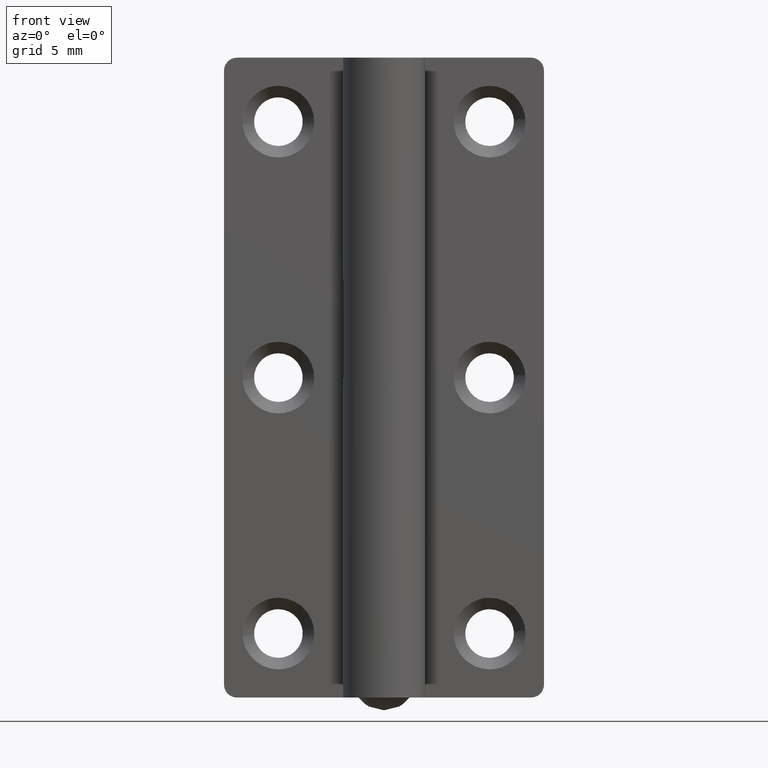
[diagram: clean part render]
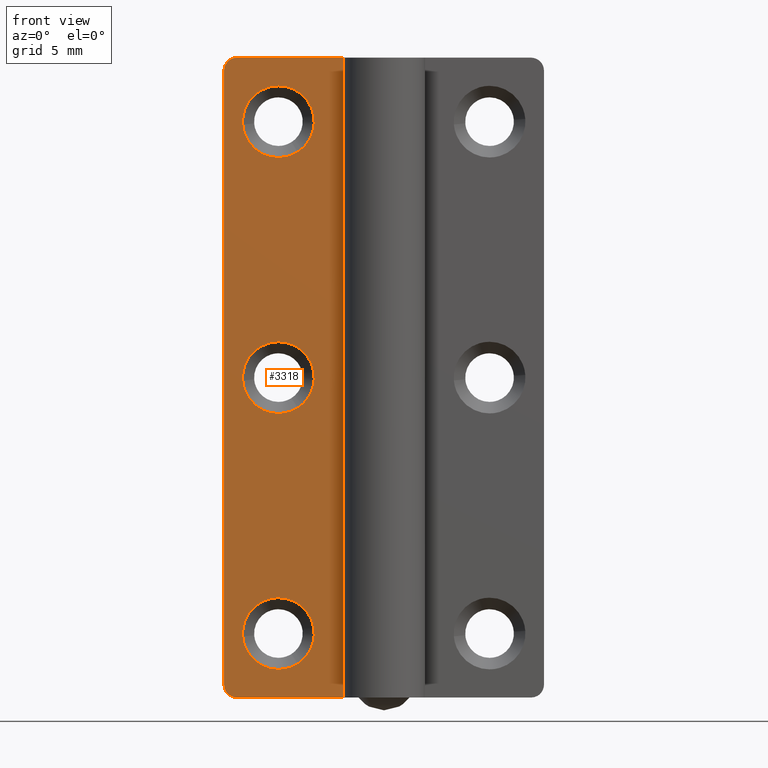
[diagram: same view with one face highlighted and labeled with its STEP entity id]
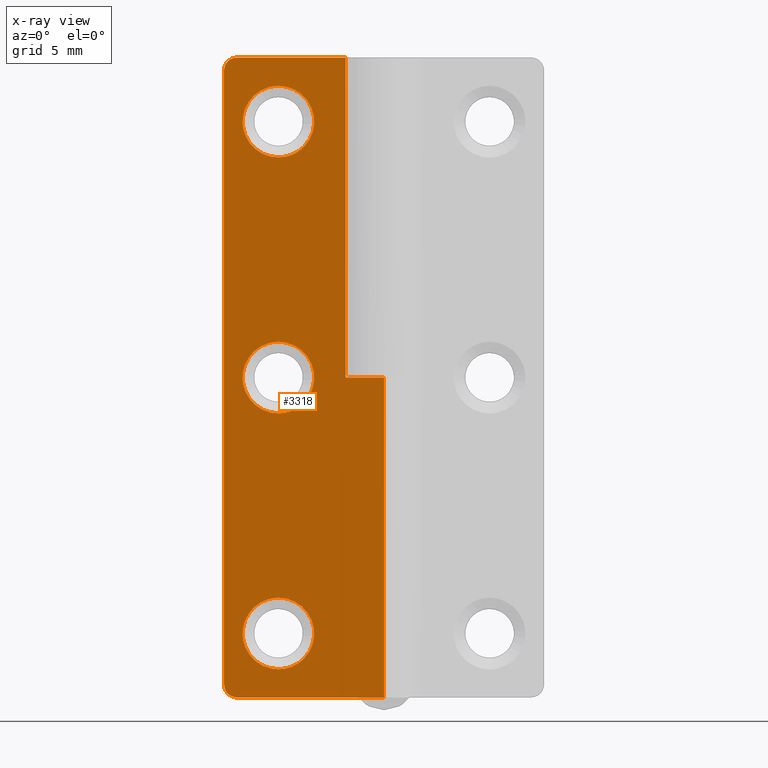
[diagram: x-ray of the same camera — body ghosted, the highlighted face saturated]
A machine part, front view. The second image highlights one B-rep face of the part: STEP entity #3318.
The next image is the same camera in x-ray: the body ghosted, the highlighted face saturated — about 0% of this face is hidden behind the body in this view.
In plain terms, the highlighted face is a freeform B-spline surface patch.
Its self-contained STEP definition (entity closure, byte-faithful):
#1903=CARTESIAN_POINT('',(-6.744017771877992,1.999999999996396,42.639487853164482));
#1904=VERTEX_POINT('',#1903);
#1910=CARTESIAN_POINT('',(-8.250000000000000,2.0,47.800000011920929));
#1911=VERTEX_POINT('',#1910);
#1912=CARTESIAN_POINT('',(-8.250000000000000,2.0,47.800000011920929));
#1913=CARTESIAN_POINT('',(-5.449999988079070,2.000000000000000,47.800000011920929));
#1914=CARTESIAN_POINT('',(-5.449999988079070,2.0,45.0));
#1915=CARTESIAN_POINT('',(-5.449999988079069,2.000000000000000,43.465057756714870));
#1916=CARTESIAN_POINT('',(-6.744017771877993,1.999999999996397,42.639487853164475));
#1924=(BOUNDED_CURVE()B_SPLINE_CURVE(2,(#1912,#1913,#1914,#1915,#1916),.UNSPECIFIED.,.F.,.U.)B_SPLINE_CURVE_WITH_KNOTS((3,2,3),(0.0,0.250000000000000,0.407950112619935),.UNSPECIFIED.)CURVE()GEOMETRIC_REPRESENTATION_ITEM()RATIONAL_B_SPLINE_CURVE((1.0,0.707106781186548,1.0,0.814949932411200,0.863729296950220))REPRESENTATION_ITEM(''));
#1925=EDGE_CURVE('',#1911,#1904,#1924,.T.);
#1927=CARTESIAN_POINT('',(-11.041368546347060,1.999999999974802,44.780314530834097));
#1928=VERTEX_POINT('',#1927);
#1929=CARTESIAN_POINT('',(-11.041368546347059,1.999999999974803,44.780314530834112));
#1930=CARTESIAN_POINT('',(-11.050000011920931,2.0,44.889987699718631));
#1931=CARTESIAN_POINT('',(-11.050000011920931,2.0,45.0));
#1932=CARTESIAN_POINT('',(-11.050000011920931,2.000000000000000,47.800000011920929));
#1933=CARTESIAN_POINT('',(-8.250000000000000,2.0,47.800000011920929));
#1941=(BOUNDED_CURVE()B_SPLINE_CURVE(2,(#1929,#1930,#1931,#1932,#1933),.UNSPECIFIED.,.F.,.U.)B_SPLINE_CURVE_WITH_KNOTS((3,2,3),(0.736331300609352,0.750000000000000,1.0),.UNSPECIFIED.)CURVE()GEOMETRIC_REPRESENTATION_ITEM()RATIONAL_B_SPLINE_CURVE((0.969723356122950,0.983986122553918,1.0,0.707106781186548,1.0))REPRESENTATION_ITEM(''));
#1942=EDGE_CURVE('',#1928,#1911,#1941,.T.);
#2046=CARTESIAN_POINT('',(-8.250000000000000,2.0,42.199999988079057));
#2047=VERTEX_POINT('',#2046);
#2048=CARTESIAN_POINT('',(-8.250000000000000,2.0,42.199999988079057));
#2049=CARTESIAN_POINT('',(-10.838293387307939,2.000000000000000,42.199999988079071));
#2050=CARTESIAN_POINT('',(-11.041368546347060,1.999999999974803,44.780314530834112));
#2058=(BOUNDED_CURVE()B_SPLINE_CURVE(2,(#2048,#2049,#2050),.UNSPECIFIED.,.F.,.U.)B_SPLINE_CURVE_WITH_KNOTS((3,3),(0.500000000000000,0.736331300609351),.UNSPECIFIED.)CURVE()GEOMETRIC_REPRESENTATION_ITEM()RATIONAL_B_SPLINE_CURVE((1.0,0.723120658632630,0.969723356122949))REPRESENTATION_ITEM(''));
#2059=EDGE_CURVE('',#2047,#1928,#2058,.T.);
#2061=CARTESIAN_POINT('',(-6.744017771877993,1.999999999996397,42.639487853164475));
#2062=CARTESIAN_POINT('',(-7.432881441383225,2.0,42.199999988079071));
#2063=CARTESIAN_POINT('',(-8.250000000000000,2.0,42.199999988079057));
#2071=(BOUNDED_CURVE()B_SPLINE_CURVE(2,(#2061,#2062,#2063),.UNSPECIFIED.,.F.,.U.)B_SPLINE_CURVE_WITH_KNOTS((3,3),(0.407950112619935,0.500000000000000),.UNSPECIFIED.)CURVE()GEOMETRIC_REPRESENTATION_ITEM()RATIONAL_B_SPLINE_CURVE((0.863729296950220,0.892156848775348,1.0))REPRESENTATION_ITEM(''));
#2072=EDGE_CURVE('',#1904,#2047,#2071,.T.);
#2247=CARTESIAN_POINT('',(-6.744017771877990,1.999999999996395,22.639487853164479));
#2248=VERTEX_POINT('',#2247);
#2254=CARTESIAN_POINT('',(-8.250000000000000,2.0,27.800000011920929));
#2255=VERTEX_POINT('',#2254);
#2256=CARTESIAN_POINT('',(-8.250000000000000,2.0,27.800000011920929));
#2257=CARTESIAN_POINT('',(-5.449999988079070,2.000000000000000,27.800000011920940));
#2258=CARTESIAN_POINT('',(-5.449999988079070,2.0,25.0));
#2259=CARTESIAN_POINT('',(-5.449999988079069,2.000000000000000,23.465057756714874));
#2260=CARTESIAN_POINT('',(-6.744017771877990,1.999999999996395,22.639487853164482));
#2268=(BOUNDED_CURVE()B_SPLINE_CURVE(2,(#2256,#2257,#2258,#2259,#2260),.UNSPECIFIED.,.F.,.U.)B_SPLINE_CURVE_WITH_KNOTS((3,2,3),(0.0,0.250000000000000,0.407950112619935),.UNSPECIFIED.)CURVE()GEOMETRIC_REPRESENTATION_ITEM()RATIONAL_B_SPLINE_CURVE((1.0,0.707106781186548,1.0,0.814949932411200,0.863729296950220))REPRESENTATION_ITEM(''));
#2269=EDGE_CURVE('',#2255,#2248,#2268,.T.);
#2271=CARTESIAN_POINT('',(-11.041368546347060,1.999999999974802,24.780314530834119));
#2272=VERTEX_POINT('',#2271);
#2273=CARTESIAN_POINT('',(-11.041368546347053,1.999999999974802,24.780314530834122));
#2274=CARTESIAN_POINT('',(-11.050000011920927,2.000000000000000,24.889987699718635));
#2275=CARTESIAN_POINT('',(-11.050000011920931,2.0,25.0));
#2276=CARTESIAN_POINT('',(-11.050000011920931,2.000000000000000,27.800000011920940));
#2277=CARTESIAN_POINT('',(-8.250000000000000,2.0,27.800000011920929));
#2285=(BOUNDED_CURVE()B_SPLINE_CURVE(2,(#2273,#2274,#2275,#2276,#2277),.UNSPECIFIED.,.F.,.U.)B_SPLINE_CURVE_WITH_KNOTS((3,2,3),(0.736331300609352,0.750000000000000,1.0),.UNSPECIFIED.)CURVE()GEOMETRIC_REPRESENTATION_ITEM()RATIONAL_B_SPLINE_CURVE((0.969723356122951,0.983986122553919,1.0,0.707106781186548,1.0))REPRESENTATION_ITEM(''));
#2286=EDGE_CURVE('',#2272,#2255,#2285,.T.);
#2390=CARTESIAN_POINT('',(-8.250000000000000,2.0,22.199999988079071));
#2391=VERTEX_POINT('',#2390);
#2392=CARTESIAN_POINT('',(-8.250000000000000,2.0,22.199999988079071));
#2393=CARTESIAN_POINT('',(-10.838293387307939,2.000000000000000,22.199999988079071));
#2394=CARTESIAN_POINT('',(-11.041368546347060,1.999999999974803,24.780314530834122));
#2402=(BOUNDED_CURVE()B_SPLINE_CURVE(2,(#2392,#2393,#2394),.UNSPECIFIED.,.F.,.U.)B_SPLINE_CURVE_WITH_KNOTS((3,3),(0.500000000000000,0.736331300609351),.UNSPECIFIED.)CURVE()GEOMETRIC_REPRESENTATION_ITEM()RATIONAL_B_SPLINE_CURVE((1.0,0.723120658632630,0.969723356122949))REPRESENTATION_ITEM(''));
#2403=EDGE_CURVE('',#2391,#2272,#2402,.T.);
#2405=CARTESIAN_POINT('',(-6.744017771877990,1.999999999996395,22.639487853164482));
#2406=CARTESIAN_POINT('',(-7.432881441383225,2.0,22.199999988079075));
#2407=CARTESIAN_POINT('',(-8.250000000000000,2.0,22.199999988079071));
#2415=(BOUNDED_CURVE()B_SPLINE_CURVE(2,(#2405,#2406,#2407),.UNSPECIFIED.,.F.,.U.)B_SPLINE_CURVE_WITH_KNOTS((3,3),(0.407950112619935,0.500000000000000),.UNSPECIFIED.)CURVE()GEOMETRIC_REPRESENTATION_ITEM()RATIONAL_B_SPLINE_CURVE((0.863729296950220,0.892156848775348,1.0))REPRESENTATION_ITEM(''));
#2416=EDGE_CURVE('',#2248,#2391,#2415,.T.);
#2591=CARTESIAN_POINT('',(-6.744017771877990,1.999999999996396,2.639487853164478));
#2592=VERTEX_POINT('',#2591);
#2598=CARTESIAN_POINT('',(-8.250000000000000,2.0,7.800000011920930));
#2599=VERTEX_POINT('',#2598);
#2600=CARTESIAN_POINT('',(-8.250000000000000,2.0,7.800000011920930));
#2601=CARTESIAN_POINT('',(-5.449999988079070,2.000000000000000,7.800000011920929));
#2602=CARTESIAN_POINT('',(-5.449999988079070,2.0,5.0));
#2603=CARTESIAN_POINT('',(-5.449999988079069,2.000000000000000,3.465057756714876));
#2604=CARTESIAN_POINT('',(-6.744017771877990,1.999999999996396,2.639487853164478));
#2612=(BOUNDED_CURVE()B_SPLINE_CURVE(2,(#2600,#2601,#2602,#2603,#2604),.UNSPECIFIED.,.F.,.U.)B_SPLINE_CURVE_WITH_KNOTS((3,2,3),(0.0,0.250000000000000,0.407950112619935),.UNSPECIFIED.)CURVE()GEOMETRIC_REPRESENTATION_ITEM()RATIONAL_B_SPLINE_CURVE((1.0,0.707106781186548,1.0,0.814949932411200,0.863729296950220))REPRESENTATION_ITEM(''));
#2613=EDGE_CURVE('',#2599,#2592,#2612,.T.);
#2615=CARTESIAN_POINT('',(-11.041368546347060,1.999999999974803,4.780314530834112));
#2616=VERTEX_POINT('',#2615);
#2617=CARTESIAN_POINT('',(-11.041368546347055,1.999999999974803,4.780314530834112));
#2618=CARTESIAN_POINT('',(-11.050000011920934,2.000000000000000,4.889987699718628));
#2619=CARTESIAN_POINT('',(-11.050000011920931,2.0,5.0));
#2620=CARTESIAN_POINT('',(-11.050000011920931,2.000000000000000,7.800000011920929));
#2621=CARTESIAN_POINT('',(-8.250000000000000,2.0,7.800000011920930));
#2629=(BOUNDED_CURVE()B_SPLINE_CURVE(2,(#2617,#2618,#2619,#2620,#2621),.UNSPECIFIED.,.F.,.U.)B_SPLINE_CURVE_WITH_KNOTS((3,2,3),(0.736331300609352,0.750000000000000,1.0),.UNSPECIFIED.)CURVE()GEOMETRIC_REPRESENTATION_ITEM()RATIONAL_B_SPLINE_CURVE((0.969723356122950,0.983986122553918,1.0,0.707106781186548,1.0))REPRESENTATION_ITEM(''));
#2630=EDGE_CURVE('',#2616,#2599,#2629,.T.);
#2734=CARTESIAN_POINT('',(-8.250000000000000,2.0,2.199999988079070));
#2735=VERTEX_POINT('',#2734);
#2736=CARTESIAN_POINT('',(-8.250000000000000,2.0,2.199999988079070));
#2737=CARTESIAN_POINT('',(-10.838293387307939,2.000000000000000,2.199999988079071));
#2738=CARTESIAN_POINT('',(-11.041368546347060,1.999999999974803,4.780314530834112));
#2746=(BOUNDED_CURVE()B_SPLINE_CURVE(2,(#2736,#2737,#2738),.UNSPECIFIED.,.F.,.U.)B_SPLINE_CURVE_WITH_KNOTS((3,3),(0.500000000000000,0.736331300609351),.UNSPECIFIED.)CURVE()GEOMETRIC_REPRESENTATION_ITEM()RATIONAL_B_SPLINE_CURVE((1.0,0.723120658632630,0.969723356122949))REPRESENTATION_ITEM(''));
#2747=EDGE_CURVE('',#2735,#2616,#2746,.T.);
#2749=CARTESIAN_POINT('',(-6.744017771877990,1.999999999996396,2.639487853164478));
#2750=CARTESIAN_POINT('',(-7.432881441383225,2.000000000000000,2.199999988079070));
#2751=CARTESIAN_POINT('',(-8.250000000000000,2.0,2.199999988079070));
#2759=(BOUNDED_CURVE()B_SPLINE_CURVE(2,(#2749,#2750,#2751),.UNSPECIFIED.,.F.,.U.)B_SPLINE_CURVE_WITH_KNOTS((3,3),(0.407950112619935,0.500000000000000),.UNSPECIFIED.)CURVE()GEOMETRIC_REPRESENTATION_ITEM()RATIONAL_B_SPLINE_CURVE((0.863729296950220,0.892156848775347,1.0))REPRESENTATION_ITEM(''));
#2760=EDGE_CURVE('',#2592,#2735,#2759,.T.);
#2899=CARTESIAN_POINT('',(-3.0,2.0,25.0));
#2900=VERTEX_POINT('',#2899);
#2901=CARTESIAN_POINT('',(-3.0,2.0,50.0));
#2902=VERTEX_POINT('',#2901);
#2903=CARTESIAN_POINT('',(-3.0,2.0,25.0));
#2904=CARTESIAN_POINT('',(-3.0,2.0,50.0));
#2905=QUASI_UNIFORM_CURVE('',1,(#2903,#2904),.UNSPECIFIED.,.F.,.U.);
#2906=EDGE_CURVE('',#2900,#2902,#2905,.T.);
#2964=CARTESIAN_POINT('',(0.0,2.0,25.0));
#2965=VERTEX_POINT('',#2964);
#2966=CARTESIAN_POINT('',(0.0,2.0,25.0));
#2967=CARTESIAN_POINT('',(-3.0,2.0,25.0));
#2968=QUASI_UNIFORM_CURVE('',1,(#2966,#2967),.UNSPECIFIED.,.F.,.U.);
#2969=EDGE_CURVE('',#2965,#2900,#2968,.T.);
#3014=CARTESIAN_POINT('',(-11.500000000000000,2.0,50.0));
#3015=VERTEX_POINT('',#3014);
#3016=CARTESIAN_POINT('',(-12.500000000000000,2.0,49.0));
#3017=VERTEX_POINT('',#3016);
#3018=CARTESIAN_POINT('',(-11.500000000000000,2.0,50.0));
#3019=CARTESIAN_POINT('',(-12.500000000000000,2.000000000000000,50.0));
#3020=CARTESIAN_POINT('',(-12.500000000000000,2.0,49.0));
#3028=(BOUNDED_CURVE()B_SPLINE_CURVE(2,(#3018,#3019,#3020),.UNSPECIFIED.,.F.,.U.)CURVE()GEOMETRIC_REPRESENTATION_ITEM()QUASI_UNIFORM_CURVE()RATIONAL_B_SPLINE_CURVE((1.0,0.707106781186548,1.0))REPRESENTATION_ITEM(''));
#3029=EDGE_CURVE('',#3015,#3017,#3028,.T.);
#3075=CARTESIAN_POINT('',(-12.500000000000000,2.0,1.0));
#3076=VERTEX_POINT('',#3075);
#3077=CARTESIAN_POINT('',(-11.500000000000000,2.0,0.0));
#3078=VERTEX_POINT('',#3077);
#3079=CARTESIAN_POINT('',(-12.500000000000000,2.0,1.0));
#3080=CARTESIAN_POINT('',(-12.500000000000000,2.000000000000000,0.0));
#3081=CARTESIAN_POINT('',(-11.500000000000000,2.0,0.0));
#3089=(BOUNDED_CURVE()B_SPLINE_CURVE(2,(#3079,#3080,#3081),.UNSPECIFIED.,.F.,.U.)CURVE()GEOMETRIC_REPRESENTATION_ITEM()QUASI_UNIFORM_CURVE()RATIONAL_B_SPLINE_CURVE((1.0,0.707106781186548,1.0))REPRESENTATION_ITEM(''));
#3090=EDGE_CURVE('',#3076,#3078,#3089,.T.);
#3127=CARTESIAN_POINT('',(0.0,2.0,0.0));
#3128=VERTEX_POINT('',#3127);
#3129=CARTESIAN_POINT('',(-11.500000000000000,2.0,0.0));
#3130=CARTESIAN_POINT('',(0.0,2.0,0.0));
#3131=QUASI_UNIFORM_CURVE('',1,(#3129,#3130),.UNSPECIFIED.,.F.,.U.);
#3132=EDGE_CURVE('',#3078,#3128,#3131,.T.);
#3204=CARTESIAN_POINT('',(-12.500000000000000,2.0,1.0));
#3205=CARTESIAN_POINT('',(-12.500000000000000,2.0,49.0));
#3206=QUASI_UNIFORM_CURVE('',1,(#3204,#3205),.UNSPECIFIED.,.F.,.U.);
#3207=EDGE_CURVE('',#3076,#3017,#3206,.T.);
#3240=CARTESIAN_POINT('',(0.0,2.0,0.0));
#3241=CARTESIAN_POINT('',(0.0,2.0,25.0));
#3242=QUASI_UNIFORM_CURVE('',1,(#3240,#3241),.UNSPECIFIED.,.F.,.U.);
#3243=EDGE_CURVE('',#3128,#2965,#3242,.T.);
#3277=CARTESIAN_POINT('',(-11.500000000000000,2.0,50.0));
#3278=CARTESIAN_POINT('',(-3.0,2.0,50.0));
#3279=QUASI_UNIFORM_CURVE('',1,(#3277,#3278),.UNSPECIFIED.,.F.,.U.);
#3280=EDGE_CURVE('',#3015,#2902,#3279,.T.);
#3285=CARTESIAN_POINT('',(-13.124374975772570,2.0,52.497499903090286));
#3286=CARTESIAN_POINT('',(-13.124374975772570,2.0,-2.497501244194806));
#3287=CARTESIAN_POINT('',(0.624375311048700,2.0,52.497499903090301));
#3288=CARTESIAN_POINT('',(0.624375311048700,2.0,-2.497501244194806));
#3289=B_SPLINE_SURFACE_WITH_KNOTS('',1,1,((#3285,#3287),(#3286,#3288)),.UNSPECIFIED.,.F.,.F.,.U.,(2,2),(2,2),(0.0,54.995001147285109),(0.0,13.748750286821270),.UNSPECIFIED.);
#3290=ORIENTED_EDGE('',*,*,#3243,.T.);
#3291=ORIENTED_EDGE('',*,*,#2969,.T.);
#3292=ORIENTED_EDGE('',*,*,#2906,.T.);
#3293=ORIENTED_EDGE('',*,*,#3280,.F.);
#3294=ORIENTED_EDGE('',*,*,#3029,.T.);
#3295=ORIENTED_EDGE('',*,*,#3207,.F.);
#3296=ORIENTED_EDGE('',*,*,#3090,.T.);
#3297=ORIENTED_EDGE('',*,*,#3132,.T.);
#3298=EDGE_LOOP('',(#3290,#3291,#3292,#3293,#3294,#3295,#3296,#3297));
#3299=FACE_OUTER_BOUND('',#3298,.T.);
#3300=ORIENTED_EDGE('',*,*,#2747,.T.);
#3301=ORIENTED_EDGE('',*,*,#2630,.T.);
#3302=ORIENTED_EDGE('',*,*,#2613,.T.);
#3303=ORIENTED_EDGE('',*,*,#2760,.T.);
#3304=EDGE_LOOP('',(#3300,#3301,#3302,#3303));
#3305=FACE_BOUND('',#3304,.T.);
#3306=ORIENTED_EDGE('',*,*,#2403,.T.);
#3307=ORIENTED_EDGE('',*,*,#2286,.T.);
#3308=ORIENTED_EDGE('',*,*,#2269,.T.);
#3309=ORIENTED_EDGE('',*,*,#2416,.T.);
#3310=EDGE_LOOP('',(#3306,#3307,#3308,#3309));
#3311=FACE_BOUND('',#3310,.T.);
#3312=ORIENTED_EDGE('',*,*,#2059,.T.);
#3313=ORIENTED_EDGE('',*,*,#1942,.T.);
#3314=ORIENTED_EDGE('',*,*,#1925,.T.);
#3315=ORIENTED_EDGE('',*,*,#2072,.T.);
#3316=EDGE_LOOP('',(#3312,#3313,#3314,#3315));
#3317=FACE_BOUND('',#3316,.T.);
#3318=ADVANCED_FACE('',(#3299,#3305,#3311,#3317),#3289,.T.);